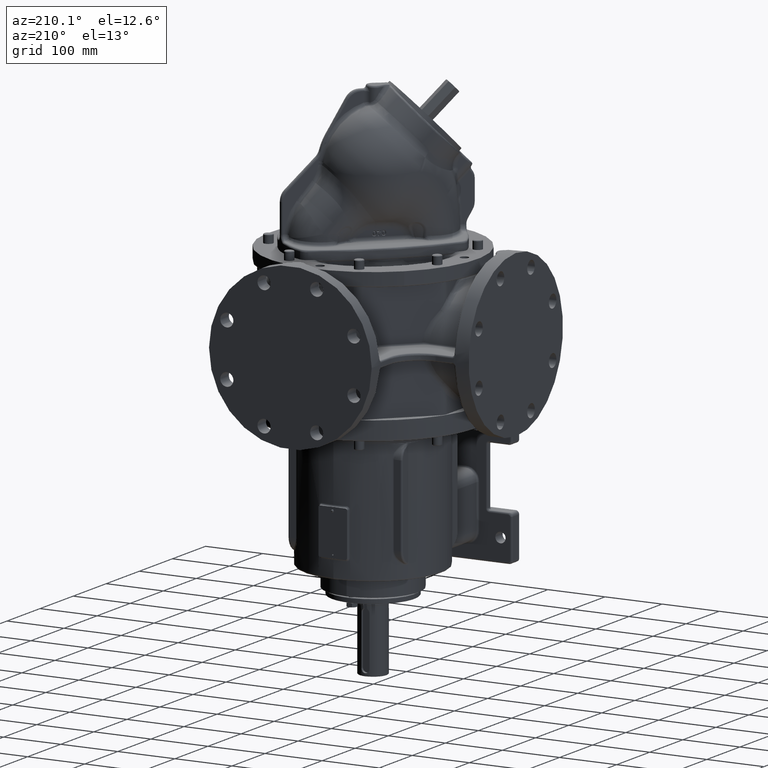
[diagram: clean part render]
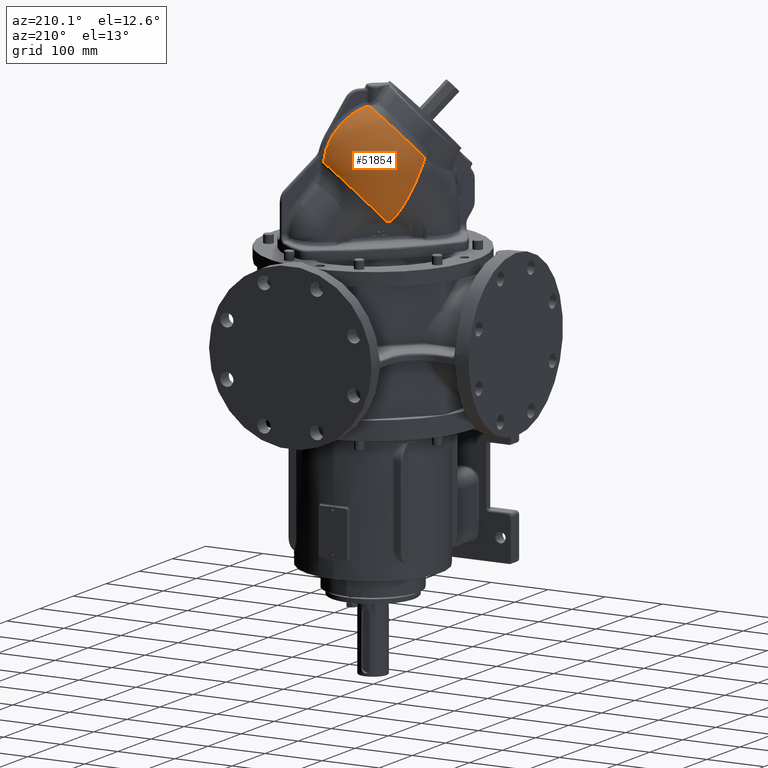
[diagram: same view with one face highlighted and labeled with its STEP entity id]
A machine part, auxiliary view. The second image highlights one B-rep face of the part: STEP entity #51854.
In plain terms, the highlighted face is a SurfaceOfRevolution surface.
Its self-contained STEP definition (entity closure, byte-faithful):
#1532=CARTESIAN_POINT('',(-4.306297129647E1,2.191600007794E1,2.903207763735E2));
#1533=CARTESIAN_POINT('',(-4.243613193781E1,2.151264333999E1,2.899036354818E2));
#1534=CARTESIAN_POINT('',(-4.180751206439E1,2.110169886357E1,2.894965586896E2));
#1535=CARTESIAN_POINT('',(-4.117721956980E1,2.068340112592E1,2.890996816342E2));
#1537=CARTESIAN_POINT('',(-4.565171172073E1,2.354508695939E1,2.921080699232E2));
#1538=CARTESIAN_POINT('',(-4.479279857255E1,2.301690002240E1,2.914934861923E2));
#1539=CARTESIAN_POINT('',(-4.392966479886E1,2.247369745011E1,2.908975322457E2));
#1540=CARTESIAN_POINT('',(-4.306297129647E1,2.191600007794E1,2.903207763735E2));
#1542=CARTESIAN_POINT('',(-4.934144486893E1,2.573620655533E1,2.948831464287E2));
#1543=CARTESIAN_POINT('',(-4.812164792287E1,2.503809383268E1,2.939205422355E2));
#1544=CARTESIAN_POINT('',(-4.689108759682E1,2.430723869693E1,2.929948886370E2));
#1545=CARTESIAN_POINT('',(-4.565171172073E1,2.354508695939E1,2.921080699232E2));
#1547=CARTESIAN_POINT('',(-5.476558688299E1,2.865912927196E1,2.994706959177E2));
#1548=CARTESIAN_POINT('',(-5.377128566671E1,2.815780834331E1,2.985719688950E2));
#1549=CARTESIAN_POINT('',(-5.197472482118E1,2.721676918283E1,2.970065348250E2));
#1550=CARTESIAN_POINT('',(-5.015086983296E1,2.619945569873E1,2.955219051710E2));
#1551=CARTESIAN_POINT('',(-4.934144486893E1,2.573620655533E1,2.948831464287E2));
#1553=CARTESIAN_POINT('',(-7.838778294874E1,3.582224734266E1,3.283016929155E2));
#1554=CARTESIAN_POINT('',(-7.837755303937E1,3.582192721781E1,3.282850134691E2));
#1555=CARTESIAN_POINT('',(-7.688822913839E1,3.577456976035E1,3.258578283630E2));
#1556=CARTESIAN_POINT('',(-7.377921416835E1,3.545764521010E1,3.211089340518E2));
#1557=CARTESIAN_POINT('',(-6.875040934690E1,3.432876640008E1,3.143449588450E2));
#1558=CARTESIAN_POINT('',(-6.337958834693E1,3.255778176587E1,3.079858198197E2));
#1559=CARTESIAN_POINT('',(-5.866311999387E1,3.056687622482E1,3.030887548903E2));
#1560=CARTESIAN_POINT('',(-5.574265735858E1,2.915176389371E1,3.003538607913E2));
#1561=CARTESIAN_POINT('',(-5.476557700796E1,2.865912562138E1,2.994706993171E2));
#1563=CARTESIAN_POINT('',(-8.260595303643E1,3.563086833332E1,3.356470882463E2));
#1564=CARTESIAN_POINT('',(-8.259788597951E1,3.563192032619E1,3.356320541848E2));
#1565=CARTESIAN_POINT('',(-8.192264967363E1,3.571884381087E1,3.343730352371E2));
#1566=CARTESIAN_POINT('',(-8.055109376991E1,3.583743021231E1,3.319064028480E2));
#1567=CARTESIAN_POINT('',(-7.911683432026E1,3.584504151736E1,3.294904249765E2));
#1568=CARTESIAN_POINT('',(-7.838775953600E1,3.582222677227E1,3.283016994668E2));
#1570=CARTESIAN_POINT('',(-8.260595303643E1,3.563086833332E1,3.356470882463E2));
#1571=CARTESIAN_POINT('',(-8.286346479944E1,3.559729804547E1,3.361270095331E2));
#1572=CARTESIAN_POINT('',(-8.337308869290E1,3.552192029443E1,3.370895632539E2));
#1573=CARTESIAN_POINT('',(-8.412113709298E1,3.538415313115E1,3.385412419070E2));
#1574=CARTESIAN_POINT('',(-8.485225980048E1,3.522173478654E1,3.399996778752E2));
#1575=CARTESIAN_POINT('',(-8.556606453113E1,3.503472712969E1,3.414640535454E2));
#1576=CARTESIAN_POINT('',(-8.626209265311E1,3.482323426626E1,3.429333473062E2));
#1577=CARTESIAN_POINT('',(-8.694026414081E1,3.458725994397E1,3.444073227457E2));
#1578=CARTESIAN_POINT('',(-8.760026780712E1,3.432691179319E1,3.458852081241E2));
#1579=CARTESIAN_POINT('',(-8.824184059956E1,3.404231330410E1,3.473662861324E2));
#1580=CARTESIAN_POINT('',(-8.886519796034E1,3.373335906068E1,3.488509975129E2));
#1581=CARTESIAN_POINT('',(-8.947019840656E1,3.340007001663E1,3.503390815775E2));
#1582=CARTESIAN_POINT('',(-9.005625195721E1,3.304274132350E1,3.518291429322E2));
#1583=CARTESIAN_POINT('',(-9.062322500271E1,3.266145656855E1,3.533207909552E2));
#1584=CARTESIAN_POINT('',(-9.117083560388E1,3.225640229913E1,3.548132119830E2));
#1585=CARTESIAN_POINT('',(-9.169888590692E1,3.182772782892E1,3.563057985499E2));
#1586=CARTESIAN_POINT('',(-9.220710629781E1,3.137568017509E1,3.577977725471E2));
#1587=CARTESIAN_POINT('',(-9.269530606559E1,3.090046023346E1,3.592885531052E2));
#1588=CARTESIAN_POINT('',(-9.316351380370E1,3.040205045649E1,3.607782029604E2));
#1589=CARTESIAN_POINT('',(-9.361151589497E1,2.988067656780E1,3.622660122793E2));
#1590=CARTESIAN_POINT('',(-9.403910848174E1,2.933657833450E1,3.637512722397E2));
#1591=CARTESIAN_POINT('',(-9.444607626134E1,2.877005548315E1,3.652332485870E2));
#1592=CARTESIAN_POINT('',(-9.483227048832E1,2.818133634291E1,3.667114423290E2));
#1593=CARTESIAN_POINT('',(-9.519753673395E1,2.757067260350E1,3.681852808628E2));
#1594=CARTESIAN_POINT('',(-9.554162036453E1,2.693857835084E1,3.696536070351E2));
#1595=CARTESIAN_POINT('',(-9.586447324316E1,2.628526146293E1,3.711160521407E2));
#1596=CARTESIAN_POINT('',(-9.616619862791E1,2.561051871349E1,3.725731351665E2));
#1597=CARTESIAN_POINT('',(-9.644651372964E1,2.491493876795E1,3.740236357778E2));
#1598=CARTESIAN_POINT('',(-9.670530892288E1,2.419883087110E1,3.754670043211E2));
#1599=CARTESIAN_POINT('',(-9.694258268074E1,2.346222452538E1,3.769032824273E2));
#1600=CARTESIAN_POINT('',(-9.715814435665E1,2.270569609839E1,3.783314302230E2));
#1601=CARTESIAN_POINT('',(-9.735183390102E1,2.192989634013E1,3.797503381967E2));
#1602=CARTESIAN_POINT('',(-9.752355521414E1,2.113541902039E1,3.811590751385E2));
#1603=CARTESIAN_POINT('',(-9.767337173934E1,2.032210588277E1,3.825580398806E2));
#1604=CARTESIAN_POINT('',(-9.780128243967E1,1.948993812036E1,3.839473655988E2));
#1605=CARTESIAN_POINT('',(-9.790718143519E1,1.863951201206E1,3.853261406952E2));
#1606=CARTESIAN_POINT('',(-9.799099159476E1,1.777150845907E1,3.866933857951E2));
#1607=CARTESIAN_POINT('',(-9.805268528190E1,1.688636268057E1,3.880485632644E2));
#1608=CARTESIAN_POINT('',(-9.809223923542E1,1.598443601747E1,3.893912503650E2));
#1609=CARTESIAN_POINT('',(-9.810965086629E1,1.506620526769E1,3.907208896313E2));
#1610=CARTESIAN_POINT('',(-9.810494722331E1,1.413214513908E1,3.920369716067E2));
#1611=CARTESIAN_POINT('',(-9.808705679554E1,1.349893959022E1,3.929053145494E2));
#1612=CARTESIAN_POINT('',(-9.807442704876E1,1.317972014810E1,3.933372411864E2));
#3763=CARTESIAN_POINT('',(-3.137470115220E0,1.686436536329E1,4.630729684697E2));
#3809=CARTESIAN_POINT('',(-6.035328926923E-1,1.685571989709E1,
4.628410537752E2));
#3810=CARTESIAN_POINT('',(-7.439140137296E-1,1.686618814113E1,
4.628529882381E2));
#3811=CARTESIAN_POINT('',(-1.024905210251E0,1.688380317086E1,4.628771822847E2));
#3812=CARTESIAN_POINT('',(-1.447129115652E0,1.690025657995E1,4.629144533315E2));
#3813=CARTESIAN_POINT('',(-1.869741534933E0,1.690671399138E1,4.629526744637E2));
#3814=CARTESIAN_POINT('',(-2.292515722973E0,1.690316600511E1,4.629918251527E2));
#3815=CARTESIAN_POINT('',(-2.715226120642E0,1.688960391535E1,4.630318851073E2));
#3816=CARTESIAN_POINT('',(-2.996761374270E0,1.687389144640E1,4.630591760138E2));
#3817=CARTESIAN_POINT('',(-3.137470115220E0,1.686436536329E1,4.630729684697E2));
#3819=CARTESIAN_POINT('',(-3.324167538675E1,-3.224167538674E1,
4.070628663684E2));
#3820=DIRECTION('',(5.E-1,5.E-1,-7.071067811865E-1));
#3821=DIRECTION('',(-8.069618999270E-1,5.653541778165E-1,-1.708424586914E-1));
#3822=AXIS2_PLACEMENT_3D('',#3819,#3820,#3821);
#3824=CARTESIAN_POINT('',(-4.117721956980E1,2.068340112592E1,2.890996816342E2));
#3825=CARTESIAN_POINT('',(-4.085467236580E1,2.100598190236E1,2.890764785511E2));
#3826=CARTESIAN_POINT('',(-4.020935434620E1,2.165158277919E1,2.890377511837E2));
#3827=CARTESIAN_POINT('',(-3.923802869126E1,2.262316822340E1,2.890024870551E2));
#3828=CARTESIAN_POINT('',(-3.827195022187E1,2.358978376912E1,2.889905059347E2));
#3829=CARTESIAN_POINT('',(-3.763702986926E1,2.422517884223E1,2.889976223693E2));
#3830=CARTESIAN_POINT('',(-3.732142425524E1,2.454106151279E1,2.890048176211E2));
#3832=CARTESIAN_POINT('',(2.167389504243E1,2.267389504243E1,3.294005218820E2));
#3833=DIRECTION('',(-5.E-1,-5.E-1,7.071067811865E-1));
#3834=DIRECTION('',(3.926187623335E-1,5.968941405291E-1,6.996912836857E-1));
#3835=AXIS2_PLACEMENT_3D('',#3832,#3833,#3834);
#3837=CARTESIAN_POINT('',(4.975573603572E1,6.536642008770E1,3.794455560420E2));
#3838=CARTESIAN_POINT('',(4.971955698539E1,6.533020048308E1,3.800083890260E2));
#3839=CARTESIAN_POINT('',(4.963972647806E1,6.525030500108E1,3.811342545408E2));
#3840=CARTESIAN_POINT('',(4.949749782994E1,6.510801866594E1,3.828234312655E2));
#3841=CARTESIAN_POINT('',(4.933286698378E1,6.494336299750E1,3.845112390605E2));
#3842=CARTESIAN_POINT('',(4.914580210380E1,6.475629602029E1,3.861974552356E2));
#3843=CARTESIAN_POINT('',(4.893609677162E1,6.454663552587E1,3.878830339897E2));
#3844=CARTESIAN_POINT('',(4.870367994936E1,6.431430108794E1,3.895677363148E2));
#3845=CARTESIAN_POINT('',(4.844863571465E1,6.405936954711E1,3.912502046318E2));
#3846=CARTESIAN_POINT('',(4.817103377179E1,6.378190410369E1,3.929294279791E2));
#3847=CARTESIAN_POINT('',(4.787097063025E1,6.348199474935E1,3.946043459676E2));
#3848=CARTESIAN_POINT('',(4.754862158114E1,6.315981206105E1,3.962736434391E2));
#3849=CARTESIAN_POINT('',(4.720402642685E1,6.281538828903E1,3.979368310576E2));
#3850=CARTESIAN_POINT('',(4.683689962166E1,6.244845698159E1,3.995948592620E2));
#3851=CARTESIAN_POINT('',(4.644721569968E1,6.205898463600E1,4.012474042976E2));
#3852=CARTESIAN_POINT('',(4.603519813878E1,6.164718974513E1,4.028931014291E2));
#3853=CARTESIAN_POINT('',(4.560104222429E1,6.121326278866E1,4.045308673914E2));
#3854=CARTESIAN_POINT('',(4.514495065650E1,6.075740172247E1,4.061596716636E2));
#3855=CARTESIAN_POINT('',(4.466725675065E1,6.027993662248E1,4.077781490888E2));
#3856=CARTESIAN_POINT('',(4.416800573338E1,5.978090802735E1,4.093859850901E2));
#3857=CARTESIAN_POINT('',(4.364687326054E1,5.926000596150E1,4.109839875173E2));
#3858=CARTESIAN_POINT('',(4.310388291876E1,5.871724632314E1,4.125718028179E2));
#3859=CARTESIAN_POINT('',(4.253948585971E1,5.815307754428E1,4.141478601218E2));
#3860=CARTESIAN_POINT('',(4.195395622302E1,5.756777007481E1,4.157112321950E2));
#3861=CARTESIAN_POINT('',(4.134760216932E1,5.696162934332E1,4.172609369428E2));
#3862=CARTESIAN_POINT('',(4.072098755274E1,5.633521623369E1,4.187954652235E2));
#3863=CARTESIAN_POINT('',(4.007401943681E1,5.568843752536E1,4.203149622892E2));
#3864=CARTESIAN_POINT('',(3.940633506108E1,5.502093775355E1,4.218201374406E2));
#3865=CARTESIAN_POINT('',(3.871821543817E1,5.433299287298E1,4.233101764027E2));
#3866=CARTESIAN_POINT('',(3.801022189608E1,5.362516245738E1,4.247837342528E2));
#3867=CARTESIAN_POINT('',(3.728270627296E1,5.289779624513E1,4.262399935872E2));
#3868=CARTESIAN_POINT('',(3.653620140779E1,5.215142562730E1,4.276778209451E2));
#3869=CARTESIAN_POINT('',(3.577130650207E1,5.138664817210E1,4.290960666067E2));
#3870=CARTESIAN_POINT('',(3.498779158883E1,5.060323548417E1,4.304951220558E2));
#3871=CARTESIAN_POINT('',(3.418532752702E1,4.980086035893E1,4.318755000893E2));
#3872=CARTESIAN_POINT('',(3.336452088710E1,4.898012703951E1,4.332360533214E2));
#3873=CARTESIAN_POINT('',(3.252595122097E1,4.814161423645E1,4.345757773281E2));
#3874=CARTESIAN_POINT('',(3.167007989996E1,4.728578287442E1,4.358939045285E2));
#3875=CARTESIAN_POINT('',(3.079769753950E1,4.641342285966E1,4.371892273421E2));
#3876=CARTESIAN_POINT('',(2.990924862105E1,4.552497993197E1,4.384611359987E2));
#3877=CARTESIAN_POINT('',(2.900439896810E1,4.462011877820E1,4.397101111384E2));
#3878=CARTESIAN_POINT('',(2.808304544301E1,4.369873714625E1,4.409362754964E2));
#3879=CARTESIAN_POINT('',(2.714591746621E1,4.276156357896E1,4.421386181621E2));
#3880=CARTESIAN_POINT('',(2.619368619874E1,4.180926990709E1,4.433162879930E2));
#3881=CARTESIAN_POINT('',(2.522693954195E1,4.084244476180E1,4.444685807906E2));
#3882=CARTESIAN_POINT('',(2.424657293175E1,3.986198424603E1,4.455944929326E2));
#3883=CARTESIAN_POINT('',(2.325291835564E1,3.886822347130E1,4.466937234921E2));
#3884=CARTESIAN_POINT('',(2.224550094633E1,3.786068247513E1,4.477668400860E2));
#3885=CARTESIAN_POINT('',(2.122450293743E1,3.683954528023E1,4.488136638269E2));
#3886=CARTESIAN_POINT('',(2.019073234353E1,3.580562045972E1,4.498333788330E2));
#3887=CARTESIAN_POINT('',(1.914491714304E1,3.475963813684E1,4.508253170150E2));
#3888=CARTESIAN_POINT('',(1.808778576461E1,3.370232840357E1,4.517888543775E2));
#3889=CARTESIAN_POINT('',(1.702020012413E1,3.263455623975E1,4.527233069930E2));
#3890=CARTESIAN_POINT('',(1.594240110596E1,3.155656489389E1,4.536285641290E2));
#3891=CARTESIAN_POINT('',(1.485385964772E1,3.046781753716E1,4.545051502373E2));
#3892=CARTESIAN_POINT('',(1.375489038759E1,2.936863180468E1,4.553528493713E2));
#3893=CARTESIAN_POINT('',(1.264648446404E1,2.826000131422E1,4.561709479667E2));
#3894=CARTESIAN_POINT('',(1.152933688892E1,2.714262432624E1,4.569590192310E2));
#3895=CARTESIAN_POINT('',(1.040419674770E1,2.601725298619E1,4.577166273408E2));
#3896=CARTESIAN_POINT('',(9.272043877614E0,2.488487226367E1,4.584432437601E2));
#3897=CARTESIAN_POINT('',(8.132834470171E0,2.374543948083E1,4.591390158327E2));
#3898=CARTESIAN_POINT('',(6.986069379146E0,2.259844444958E1,4.598043486876E2));
#3899=CARTESIAN_POINT('',(5.832215743009E0,2.144436033873E1,4.604390267131E2));
#3900=CARTESIAN_POINT('',(4.672349331880E0,2.028426655571E1,4.610425404444E2));
#3901=CARTESIAN_POINT('',(3.507067430574E0,1.911876505713E1,4.616146842657E2));
#3902=CARTESIAN_POINT('',(2.727240419161E0,1.833880017985E1,4.619749685411E2));
#3903=CARTESIAN_POINT('',(2.336627157161E0,1.794812102650E1,4.621498262215E2));
#3905=CARTESIAN_POINT('',(2.336627157161E0,1.794812102650E1,4.621498262215E2));
#3906=CARTESIAN_POINT('',(2.300526893707E0,1.791201469575E1,4.621659864634E2));
#3907=CARTESIAN_POINT('',(2.227013090005E0,1.784142143641E1,4.621978991956E2));
#3908=CARTESIAN_POINT('',(2.112742447541E0,1.774026367037E1,4.622445958995E2));
#3909=CARTESIAN_POINT('',(1.994801790443E0,1.764408110043E1,4.622900035968E2));
#3910=CARTESIAN_POINT('',(1.873588063842E0,1.755311385636E1,4.623339994341E2));
#3911=CARTESIAN_POINT('',(1.749429213850E0,1.746750264795E1,4.623765017328E2));
#3912=CARTESIAN_POINT('',(1.622536620333E0,1.738728908681E1,4.624174750390E2));
#3913=CARTESIAN_POINT('',(1.493157875639E0,1.731253292174E1,4.624568737809E2));
#3914=CARTESIAN_POINT('',(1.361520326972E0,1.724327173641E1,4.624946620514E2));
#3915=CARTESIAN_POINT('',(1.227849687304E0,1.717953596541E1,4.625308064885E2));
#3916=CARTESIAN_POINT('',(1.092363889716E0,1.712134588207E1,4.625652779559E2));
#3917=CARTESIAN_POINT('',(9.552750865003E-1,1.706871404678E1,4.625980504896E2));
#3918=CARTESIAN_POINT('',(8.167881859223E-1,1.702164569275E1,4.626291013224E2));
#3919=CARTESIAN_POINT('',(6.771040732392E-1,1.698014073504E1,4.626584098448E2));
#3920=CARTESIAN_POINT('',(5.364150150442E-1,1.694419299460E1,4.626859583734E2));
#3921=CARTESIAN_POINT('',(3.948970619703E-1,1.691378989704E1,4.627117330534E2));
#3922=CARTESIAN_POINT('',(2.527451331381E-1,1.688892078295E1,4.627357172501E2));
#3923=CARTESIAN_POINT('',(1.101388635879E-1,1.686956925842E1,4.627578978660E2));
#3924=CARTESIAN_POINT('',(-3.274253063457E-2,1.685571607218E1,
4.627782627089E2));
#3925=CARTESIAN_POINT('',(-1.757412554277E-1,1.684733957206E1,
4.627968026527E2));
#3926=CARTESIAN_POINT('',(-3.186488025440E-1,1.684441609907E1,
4.628135035688E2));
#3927=CARTESIAN_POINT('',(-4.613927549778E-1,1.684692276473E1,
4.628283659377E2));
#3928=CARTESIAN_POINT('',(-5.561974570840E-1,1.685219009546E1,
4.628370295626E2));
#3929=CARTESIAN_POINT('',(-6.035328926923E-1,1.685571989709E1,
4.628410537752E2));
#3982=CARTESIAN_POINT('',(-3.732142425524E1,2.454106151279E1,2.890048176211E2));
#43037=VERTEX_POINT('',#1563);
#43038=VERTEX_POINT('',#1568);
#43039=VERTEX_POINT('',#1561);
#43040=VERTEX_POINT('',#1551);
#43041=VERTEX_POINT('',#1545);
#43042=VERTEX_POINT('',#1540);
#43057=VERTEX_POINT('',#3982);
#43059=VERTEX_POINT('',#3824);
#43063=VERTEX_POINT('',#1612);
#43728=VERTEX_POINT('',#3763);
#43730=VERTEX_POINT('',#3809);
#43732=VERTEX_POINT('',#3905);
#43734=VERTEX_POINT('',#3837);
#51816=CARTESIAN_POINT('',(5.757196271377E1,5.857196271377E1,3.776752413852E2));
#51817=CARTESIAN_POINT('',(5.743388316031E1,5.843388316031E1,3.804325325001E2));
#51818=CARTESIAN_POINT('',(5.688214791081E1,5.788214791081E1,3.871333060997E2));
#51819=CARTESIAN_POINT('',(5.518100512988E1,5.618100512988E1,3.976446098992E2));
#51820=CARTESIAN_POINT('',(5.224533951658E1,5.324533951658E1,4.089590515713E2));
#51821=CARTESIAN_POINT('',(4.831803854265E1,4.931803854265E1,4.197114837382E2));
#51822=CARTESIAN_POINT('',(4.346688125764E1,4.446688125764E1,4.297240575090E2));
#51823=CARTESIAN_POINT('',(3.777388208133E1,3.877388208133E1,4.388313480061E2));
#51824=CARTESIAN_POINT('',(3.133405521262E1,3.233405521262E1,4.468824646518E2));
#51825=CARTESIAN_POINT('',(2.425409640213E1,2.525409640213E1,4.537430370775E2));
#51826=CARTESIAN_POINT('',(1.665097870263E1,1.765097870263E1,4.592970793783E2));
#51827=CARTESIAN_POINT('',(1.025121291947E1,1.125121291947E1,4.626180691165E2));
#51828=CARTESIAN_POINT('',(6.431931309132E0,7.431931309132E0,4.640730284970E2));
#51829=CARTESIAN_POINT('',(5.335613078049E0,6.335613078049E0,4.644486855222E2));
#51831=CARTESIAN_POINT('',(8.317347416357E1,8.417347416357E1,2.424269830086E2));
#51832=DIRECTION('',(-5.E-1,-5.E-1,7.071067811865E-1));
#51833=AXIS1_PLACEMENT('',#51831,#51832);
#51834=SURFACE_OF_REVOLUTION('',#51830,#51833);
#51835=ORIENTED_EDGE('',*,*,#51806,.T.);
#51836=ORIENTED_EDGE('',*,*,#51629,.F.);
#51837=ORIENTED_EDGE('',*,*,#47307,.F.);
#51838=ORIENTED_EDGE('',*,*,#47305,.T.);
#51839=ORIENTED_EDGE('',*,*,#47303,.T.);
#51840=ORIENTED_EDGE('',*,*,#47301,.T.);
#51841=ORIENTED_EDGE('',*,*,#47299,.T.);
#51842=ORIENTED_EDGE('',*,*,#47297,.T.);
#51843=ORIENTED_EDGE('',*,*,#47295,.T.);
#51845=ORIENTED_EDGE('',*,*,#51844,.T.);
#51847=ORIENTED_EDGE('',*,*,#51846,.F.);
#51849=ORIENTED_EDGE('',*,*,#51848,.T.);
#51851=ORIENTED_EDGE('',*,*,#51850,.T.);
#51852=EDGE_LOOP('',(#51835,#51836,#51837,#51838,#51839,#51840,#51841,#51842,
#51843,#51845,#51847,#51849,#51851));
#51853=FACE_OUTER_BOUND('',#51852,.F.);
#51854=ADVANCED_FACE('',(#51853),#51834,.T.);
#1536=B_SPLINE_CURVE_WITH_KNOTS('',3,(#1532,#1533,#1534,#1535),.UNSPECIFIED.,
.F.,.F.,(4,4),(0.E0,1.E0),.UNSPECIFIED.);
#1541=B_SPLINE_CURVE_WITH_KNOTS('',3,(#1537,#1538,#1539,#1540),.UNSPECIFIED.,
.F.,.F.,(4,4),(0.E0,1.E0),.UNSPECIFIED.);
#1546=B_SPLINE_CURVE_WITH_KNOTS('',3,(#1542,#1543,#1544,#1545),.UNSPECIFIED.,
.F.,.F.,(4,4),(0.E0,1.E0),.UNSPECIFIED.);
#1552=B_SPLINE_CURVE_WITH_KNOTS('',3,(#1547,#1548,#1549,#1550,#1551),
.UNSPECIFIED.,.F.,.F.,(4,1,4),(0.E0,5.587977438528E-1,1.E0),.UNSPECIFIED.);
#1562=B_SPLINE_CURVE_WITH_KNOTS('',3,(#1553,#1554,#1555,#1556,#1557,#1558,#1559,
#1560,#1561),.UNSPECIFIED.,.F.,.F.,(4,1,1,1,1,1,4),(0.E0,1.536596364045E-3,
2.236329202035E-1,4.457292440430E-1,6.678255678824E-1,8.899218917219E-1,1.E0),
.UNSPECIFIED.);
#1569=B_SPLINE_CURVE_WITH_KNOTS('',3,(#1563,#1564,#1565,#1566,#1567,#1568),
.UNSPECIFIED.,.F.,.F.,(4,1,1,4),(0.E0,6.051795244336E-3,5.064882187244E-1,1.E0),
.UNSPECIFIED.);
#1613=B_SPLINE_CURVE_WITH_KNOTS('',3,(#1570,#1571,#1572,#1573,#1574,#1575,#1576,
#1577,#1578,#1579,#1580,#1581,#1582,#1583,#1584,#1585,#1586,#1587,#1588,#1589,
#1590,#1591,#1592,#1593,#1594,#1595,#1596,#1597,#1598,#1599,#1600,#1601,#1602,
#1603,#1604,#1605,#1606,#1607,#1608,#1609,#1610,#1611,#1612),.UNSPECIFIED.,.F.,
.F.,(4,1,1,1,1,1,1,1,1,1,1,1,1,1,1,1,1,1,1,1,1,1,1,1,1,1,1,1,1,1,1,1,1,1,1,1,1,
1,1,1,4),(0.E0,2.5E-2,5.E-2,7.5E-2,1.E-1,1.25E-1,1.5E-1,1.75E-1,2.E-1,2.25E-1,
2.5E-1,2.75E-1,3.E-1,3.25E-1,3.5E-1,3.75E-1,4.E-1,4.25E-1,4.5E-1,4.75E-1,5.E-1,
5.25E-1,5.5E-1,5.75E-1,6.E-1,6.25E-1,6.5E-1,6.75E-1,7.E-1,7.25E-1,7.5E-1,
7.75E-1,8.E-1,8.25E-1,8.5E-1,8.75E-1,9.E-1,9.25E-1,9.5E-1,9.75E-1,1.E0),
.UNSPECIFIED.);
#3818=B_SPLINE_CURVE_WITH_KNOTS('',3,(#3809,#3810,#3811,#3812,#3813,#3814,#3815,
#3816,#3817),.UNSPECIFIED.,.F.,.F.,(4,1,1,1,1,1,4),(0.E0,1.666666666667E-1,
3.333333333333E-1,5.E-1,6.666666666667E-1,8.333333333333E-1,1.E0),
.UNSPECIFIED.);
#3823=CIRCLE('',#3822,8.034175720366E1);
#3831=B_SPLINE_CURVE_WITH_KNOTS('',3,(#3824,#3825,#3826,#3827,#3828,#3829,
#3830),.UNSPECIFIED.,.F.,.F.,(4,1,1,1,4),(0.E0,2.5E-1,5.E-1,7.5E-1,1.E0),
.UNSPECIFIED.);
#3836=CIRCLE('',#3835,7.152444989228E1);
#3904=B_SPLINE_CURVE_WITH_KNOTS('',3,(#3837,#3838,#3839,#3840,#3841,#3842,#3843,
#3844,#3845,#3846,#3847,#3848,#3849,#3850,#3851,#3852,#3853,#3854,#3855,#3856,
#3857,#3858,#3859,#3860,#3861,#3862,#3863,#3864,#3865,#3866,#3867,#3868,#3869,
#3870,#3871,#3872,#3873,#3874,#3875,#3876,#3877,#3878,#3879,#3880,#3881,#3882,
#3883,#3884,#3885,#3886,#3887,#3888,#3889,#3890,#3891,#3892,#3893,#3894,#3895,
#3896,#3897,#3898,#3899,#3900,#3901,#3902,#3903),.UNSPECIFIED.,.F.,.F.,(4,1,1,1,
1,1,1,1,1,1,1,1,1,1,1,1,1,1,1,1,1,1,1,1,1,1,1,1,1,1,1,1,1,1,1,1,1,1,1,1,1,1,1,1,
1,1,1,1,1,1,1,1,1,1,1,1,1,1,1,1,1,1,1,1,4),(0.E0,1.5625E-2,3.125E-2,4.6875E-2,
6.25E-2,7.8125E-2,9.375E-2,1.09375E-1,1.25E-1,1.40625E-1,1.5625E-1,1.71875E-1,
1.875E-1,2.03125E-1,2.1875E-1,2.34375E-1,2.5E-1,2.65625E-1,2.8125E-1,2.96875E-1,
3.125E-1,3.28125E-1,3.4375E-1,3.59375E-1,3.75E-1,3.90625E-1,4.0625E-1,
4.21875E-1,4.375E-1,4.53125E-1,4.6875E-1,4.84375E-1,5.E-1,5.15625E-1,5.3125E-1,
5.46875E-1,5.625E-1,5.78125E-1,5.9375E-1,6.09375E-1,6.25E-1,6.40625E-1,
6.5625E-1,6.71875E-1,6.875E-1,7.03125E-1,7.1875E-1,7.34375E-1,7.5E-1,7.65625E-1,
7.8125E-1,7.96875E-1,8.125E-1,8.28125E-1,8.4375E-1,8.59375E-1,8.75E-1,
8.90625E-1,9.0625E-1,9.21875E-1,9.375E-1,9.53125E-1,9.6875E-1,9.84375E-1,1.E0),
.UNSPECIFIED.);
#3930=B_SPLINE_CURVE_WITH_KNOTS('',3,(#3905,#3906,#3907,#3908,#3909,#3910,#3911,
#3912,#3913,#3914,#3915,#3916,#3917,#3918,#3919,#3920,#3921,#3922,#3923,#3924,
#3925,#3926,#3927,#3928,#3929),.UNSPECIFIED.,.F.,.F.,(4,1,1,1,1,1,1,1,1,1,1,1,1,
1,1,1,1,1,1,1,1,1,4),(0.E0,4.545454545455E-2,9.090909090909E-2,
1.363636363636E-1,1.818181818182E-1,2.272727272727E-1,2.727272727273E-1,
3.181818181818E-1,3.636363636364E-1,4.090909090909E-1,4.545454545455E-1,5.E-1,
5.454545454545E-1,5.909090909091E-1,6.363636363636E-1,6.818181818182E-1,
7.272727272727E-1,7.727272727273E-1,8.181818181818E-1,8.636363636364E-1,
9.090909090909E-1,9.545454545455E-1,1.E0),.UNSPECIFIED.);
#47295=EDGE_CURVE('',#43042,#43059,#1536,.T.);
#47297=EDGE_CURVE('',#43041,#43042,#1541,.T.);
#47299=EDGE_CURVE('',#43040,#43041,#1546,.T.);
#47301=EDGE_CURVE('',#43039,#43040,#1552,.T.);
#47303=EDGE_CURVE('',#43038,#43039,#1562,.T.);
#47305=EDGE_CURVE('',#43037,#43038,#1569,.T.);
#47307=EDGE_CURVE('',#43037,#43063,#1613,.T.);
#51629=EDGE_CURVE('',#43063,#43728,#3823,.T.);
#51806=EDGE_CURVE('',#43730,#43728,#3818,.T.);
#51830=B_SPLINE_CURVE_WITH_KNOTS('',3,(#51816,#51817,#51818,#51819,#51820,
#51821,#51822,#51823,#51824,#51825,#51826,#51827,#51828,#51829),.UNSPECIFIED.,
.F.,.F.,(4,1,1,1,1,1,1,1,1,1,1,4),(0.E0,6.911279276396E-2,1.681459104718E-1,
2.671790281796E-1,3.662121458874E-1,4.652452635952E-1,5.642783813030E-1,
6.633114990108E-1,7.623446167186E-1,8.613777344264E-1,9.604108521342E-1,1.E0),
.UNSPECIFIED.);
#51844=EDGE_CURVE('',#43059,#43057,#3831,.T.);
#51846=EDGE_CURVE('',#43734,#43057,#3836,.T.);
#51848=EDGE_CURVE('',#43734,#43732,#3904,.T.);
#51850=EDGE_CURVE('',#43732,#43730,#3930,.T.);